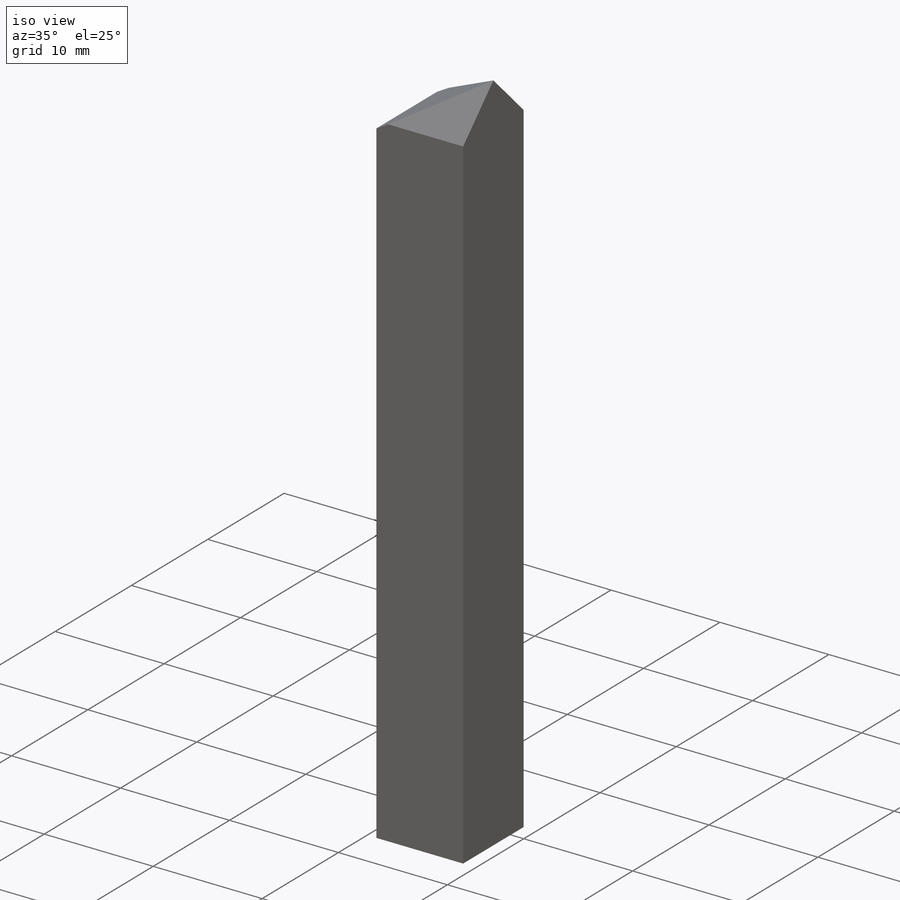
[diagram: iso view]
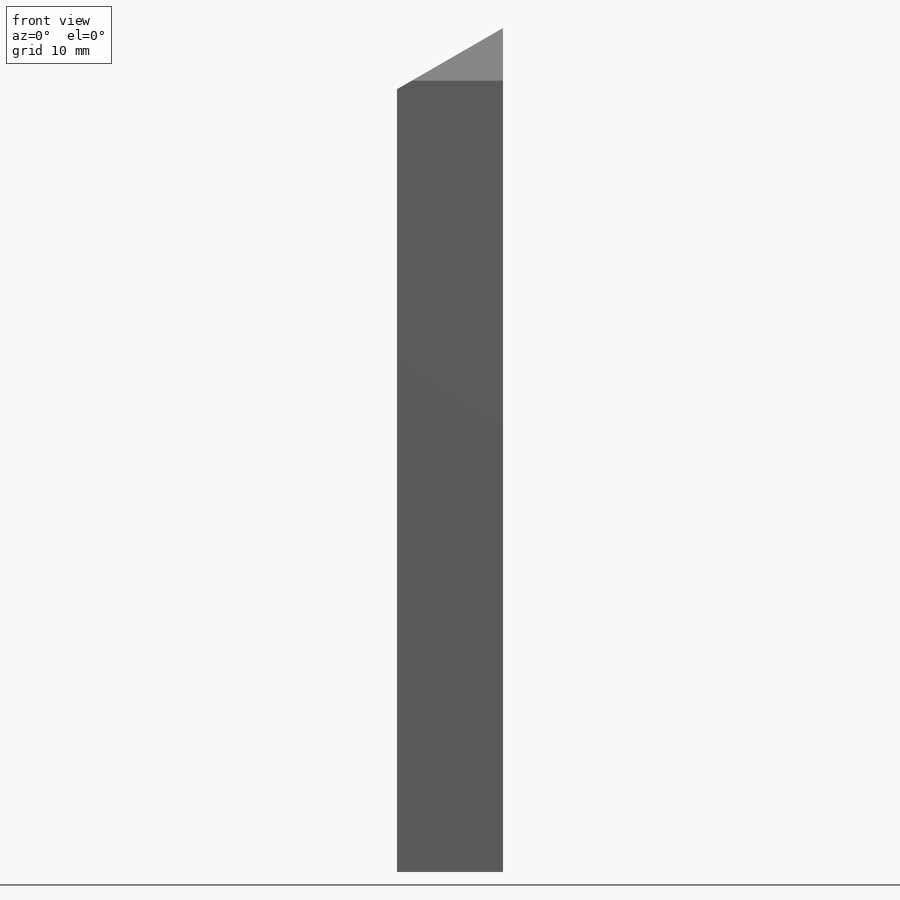
[diagram: front view]
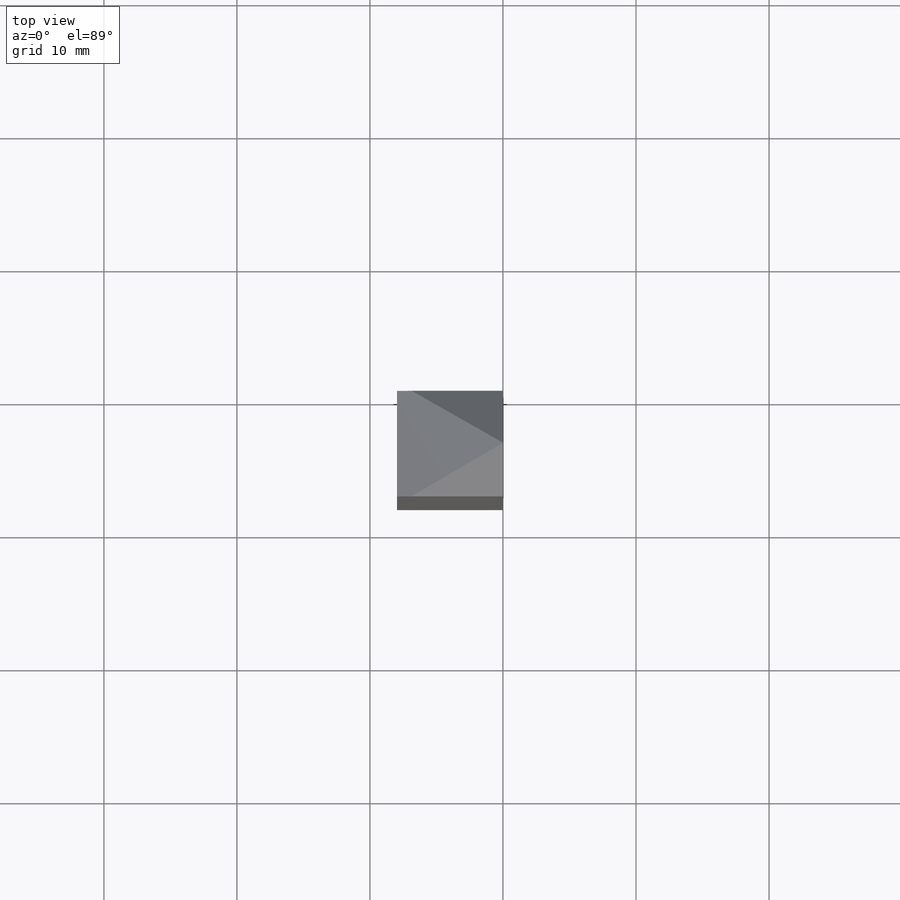
[diagram: top view]
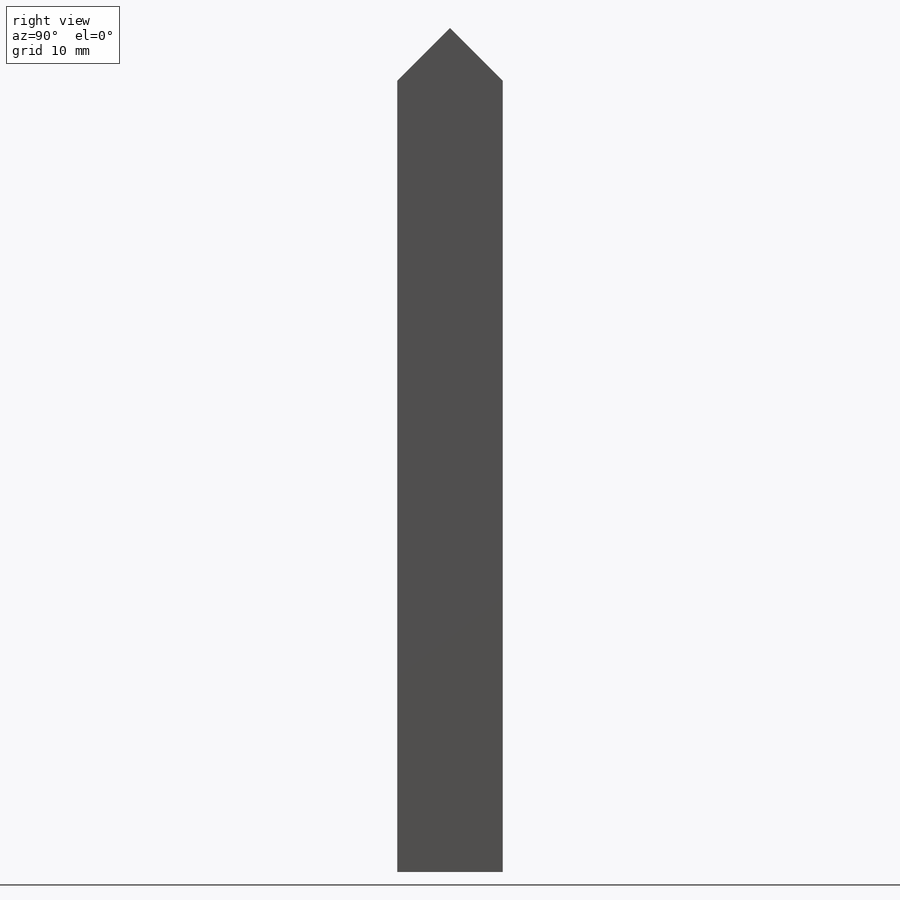
[diagram: right view]
SOLIDWORKS PART (.sldprt)
format: sldprt  version: not decoded by parser v0  size: 131,584 bytes
history: native  units: mm
features: sketch x6, material x1, extrude x1, cut_extrude x1 (+16 scaffold rows collapsed)
feature tree (25):
  scaffold x16  (default folders/planes/origin — collapsed)
  material  "Material <not specified>"
  sketch  "Sketch1"  dims[c1.D1=2.5mm c1.D2=0.3125mm c2.D1=0.3125mm c3.D1=60.0deg c4.D1=~0.220971mm c5.D1=30.0deg c5.D2=0.3125mm c6.D1=63.5mm c6.D2=7.9375mm c7.D1=7.9375mm c8.D1=30.0deg]
  extrude  "Boss-Extrude1"  Depth=7.9375mm
  sketch  "Sketch2"  dims[c1.D1=7.9375mm c2.D1=45.0deg c2.D2=7.9375mm c3.D2=45.0deg]
  cut_extrude  "Cut-Extrude1"  [1 undecoded]
  sketch  "Sketch4"  dims[c1.D1=~4.200878mm c2.D1=82.0deg]
  sketch  "Sketch5"  dims[c1.D1=7.9375mm c2.D1=45.0deg c3.D1=~7.065062mm c4.D1=45.0deg]
  sketch  "Sketch6"
  sketch  "Sketch7"
decode coverage: 5 of 8 modeling features carry decoded parameters
note: ~ marks probable driven/reference dimensions
note: 1 parameter value undecoded
note: suppression state not decoded; provenance and decode notes live in map.json
